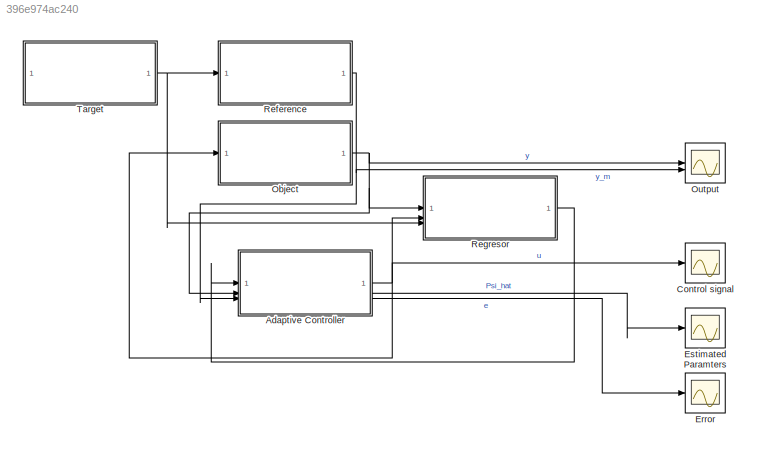
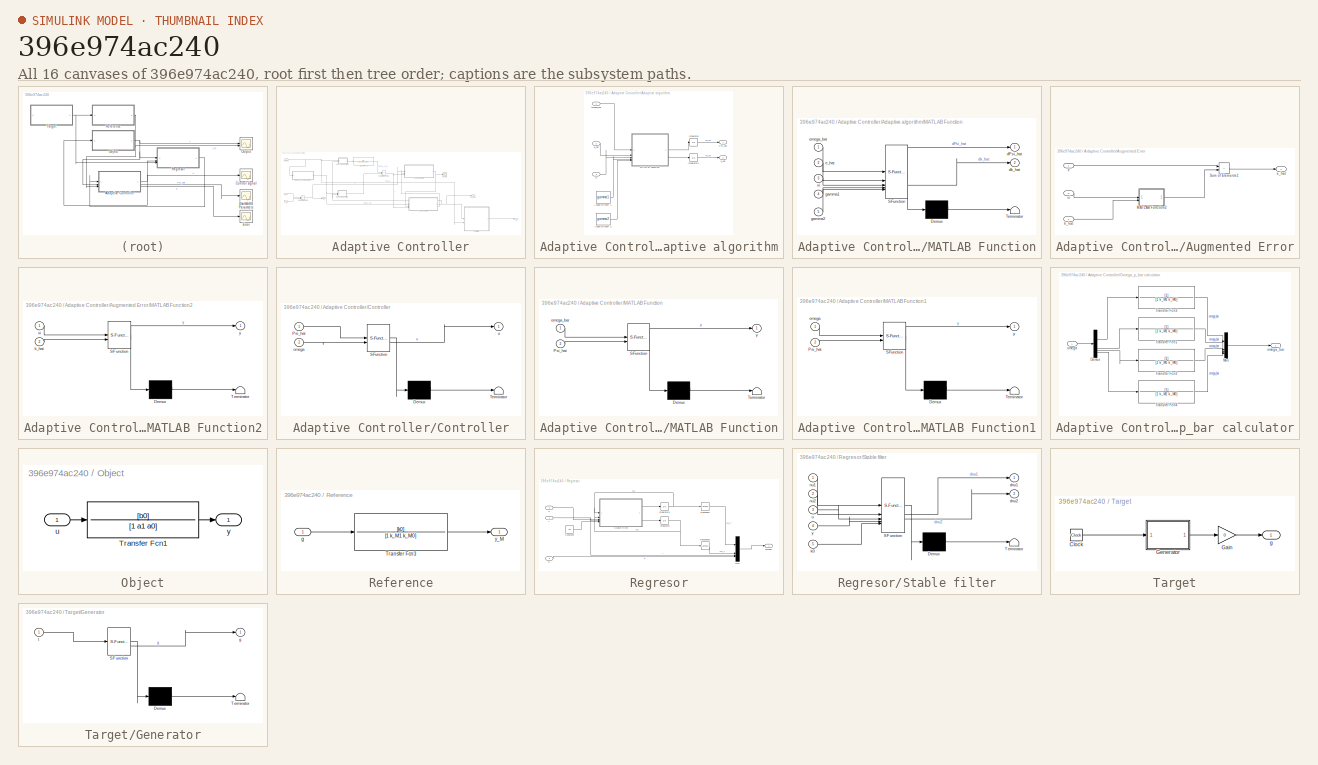
[diagram: thumbnail index - all 16 canvases of the model, root first then tree order]
MODEL slx_396e974ac240
KIND model
CONFIG AbsTol = auto
CONFIG EnableMultiTasking = off
CONFIG FixedStep = 1e-3
CONFIG MaxStep = auto
CONFIG MinStep = auto
CONFIG RelTol = 1e-3
CONFIG SampleTimeConstraint = Unconstrained
CONFIG SolverName = FixedStepAuto
CONFIG StartTime = 0.0
CONFIG StopTime = 300
BLOCK [SubSystem] Adaptive Controller
BLOCK [SubSystem] Adaptive Controller/Adaptive algorithm
BLOCK [Constant] Adaptive Controller/Adaptive algorithm/Adaptive coeff 1
  Value = gamma1
BLOCK [Constant] Adaptive Controller/Adaptive algorithm/Adaptive coeff 2
  Value = gamma2
BLOCK [Integrator] Adaptive Controller/Adaptive algorithm/Integrator
BLOCK [Integrator] Adaptive Controller/Adaptive algorithm/Integrator1
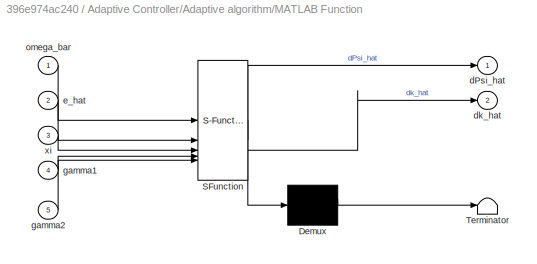
BLOCK [SubSystem] Adaptive Controller/Adaptive algorithm/MATLAB Function
  ErrorFcn = Stateflow.Translate.translate
  PermitHierarchicalResolution = ExplicitOnly
  SFBlockType = MATLAB Function
  TreatAsAtomicUnit = on
BLOCK [Demux] Adaptive Controller/Adaptive algorithm/MATLAB Function/ Demux 
  Outputs = 1
BLOCK [S-Function] Adaptive Controller/Adaptive algorithm/MATLAB Function/ SFunction 
  EnableBusSupport = on
  FunctionName = sf_sfun
  PortCounts = [5 3]
  SFcnIsStateOwnerBlock = off
  SFunctionDeploymentMode = off
  Tag = Stateflow S-Function 3
BLOCK [Terminator] Adaptive Controller/Adaptive algorithm/MATLAB Function/ Terminator 
BLOCK [Outport] Adaptive Controller/Adaptive algorithm/MATLAB Function/dPsi_hat
BLOCK [Outport] Adaptive Controller/Adaptive algorithm/MATLAB Function/dk_hat
  Port = 2
BLOCK [Inport] Adaptive Controller/Adaptive algorithm/MATLAB Function/e_hat
  Port = 2
BLOCK [Inport] Adaptive Controller/Adaptive algorithm/MATLAB Function/gamma1
  Port = 4
BLOCK [Inport] Adaptive Controller/Adaptive algorithm/MATLAB Function/gamma2
  Port = 5
BLOCK [Inport] Adaptive Controller/Adaptive algorithm/MATLAB Function/omega_bar
BLOCK [Inport] Adaptive Controller/Adaptive algorithm/MATLAB Function/xi
  Port = 3
BLOCK [Outport] Adaptive Controller/Adaptive algorithm/Psi_hat
BLOCK [Inport] Adaptive Controller/Adaptive algorithm/e_hat
  Port = 2
BLOCK [Outport] Adaptive Controller/Adaptive algorithm/k_hat
  Port = 2
BLOCK [Inport] Adaptive Controller/Adaptive algorithm/omega_bar
BLOCK [Inport] Adaptive Controller/Adaptive algorithm/xi
  Port = 3
BLOCK [SubSystem] Adaptive Controller/Augmented Error
BLOCK [SubSystem] Adaptive Controller/Augmented Error/MATLAB Function2
  ErrorFcn = Stateflow.Translate.translate
  PermitHierarchicalResolution = ExplicitOnly
  SFBlockType = MATLAB Function
  TreatAsAtomicUnit = on
BLOCK [Demux] Adaptive Controller/Augmented Error/MATLAB Function2/ Demux 
  Outputs = 1
BLOCK [S-Function] Adaptive Controller/Augmented Error/MATLAB Function2/ SFunction 
  EnableBusSupport = on
  FunctionName = sf_sfun
  PortCounts = [2 2]
  SFcnIsStateOwnerBlock = off
  SFunctionDeploymentMode = off
  Tag = Stateflow S-Function 7
BLOCK [Terminator] Adaptive Controller/Augmented Error/MATLAB Function2/ Terminator 
BLOCK [Inport] Adaptive Controller/Augmented Error/MATLAB Function2/k_hat
  Port = 2
BLOCK [Inport] Adaptive Controller/Augmented Error/MATLAB Function2/xi
BLOCK [Outport] Adaptive Controller/Augmented Error/MATLAB Function2/y
BLOCK [Sum] Adaptive Controller/Augmented Error/Sum of Elements1
  IconShape = rectangular
BLOCK [Inport] Adaptive Controller/Augmented Error/e
BLOCK [Outport] Adaptive Controller/Augmented Error/e_hat
BLOCK [Inport] Adaptive Controller/Augmented Error/k_hat
  Port = 2
BLOCK [Inport] Adaptive Controller/Augmented Error/xi
  Port = 3
BLOCK [SubSystem] Adaptive Controller/Controller
  ErrorFcn = Stateflow.Translate.translate
  PermitHierarchicalResolution = ExplicitOnly
  SFBlockType = MATLAB Function
  TreatAsAtomicUnit = on
BLOCK [Demux] Adaptive Controller/Controller/ Demux 
  Outputs = 1
BLOCK [S-Function] Adaptive Controller/Controller/ SFunction 
  EnableBusSupport = on
  FunctionName = sf_sfun
  PortCounts = [2 2]
  SFcnIsStateOwnerBlock = off
  SFunctionDeploymentMode = off
  Tag = Stateflow S-Function 4
BLOCK [Terminator] Adaptive Controller/Controller/ Terminator 
BLOCK [Inport] Adaptive Controller/Controller/Psi_hat
BLOCK [Inport] Adaptive Controller/Controller/omega
  Port = 2
BLOCK [Outport] Adaptive Controller/Controller/u
BLOCK [SubSystem] Adaptive Controller/MATLAB Function
  ErrorFcn = Stateflow.Translate.translate
  PermitHierarchicalResolution = ExplicitOnly
  SFBlockType = MATLAB Function
  TreatAsAtomicUnit = on
BLOCK [Demux] Adaptive Controller/MATLAB Function/ Demux 
  Outputs = 1
BLOCK [S-Function] Adaptive Controller/MATLAB Function/ SFunction 
  EnableBusSupport = on
  FunctionName = sf_sfun
  PortCounts = [2 2]
  SFcnIsStateOwnerBlock = off
  SFunctionDeploymentMode = off
  Tag = Stateflow S-Function 5
BLOCK [Terminator] Adaptive Controller/MATLAB Function/ Terminator 
BLOCK [Inport] Adaptive Controller/MATLAB Function/Psi_hat
  Port = 2
BLOCK [Inport] Adaptive Controller/MATLAB Function/omega_bar
BLOCK [Outport] Adaptive Controller/MATLAB Function/y
BLOCK [SubSystem] Adaptive Controller/MATLAB Function1
  ErrorFcn = Stateflow.Translate.translate
  PermitHierarchicalResolution = ExplicitOnly
  SFBlockType = MATLAB Function
  TreatAsAtomicUnit = on
BLOCK [Demux] Adaptive Controller/MATLAB Function1/ Demux 
  Outputs = 1
BLOCK [S-Function] Adaptive Controller/MATLAB Function1/ SFunction 
  EnableBusSupport = on
  FunctionName = sf_sfun
  PortCounts = [2 2]
  SFcnIsStateOwnerBlock = off
  SFunctionDeploymentMode = off
  Tag = Stateflow S-Function 6
BLOCK [Terminator] Adaptive Controller/MATLAB Function1/ Terminator 
BLOCK [Inport] Adaptive Controller/MATLAB Function1/Psi_hat
  Port = 2
BLOCK [Inport] Adaptive Controller/MATLAB Function1/omega
BLOCK [Outport] Adaptive Controller/MATLAB Function1/y
BLOCK [SubSystem] Adaptive Controller/Omega_p_bar calculator
BLOCK [Demux] Adaptive Controller/Omega_p_bar calculator/Demux
  NameLocation = right
BLOCK [Mux] Adaptive Controller/Omega_p_bar calculator/Mux
  DisplayOption = bar
BLOCK [TransferFcn] Adaptive Controller/Omega_p_bar calculator/Transfer Fcn1
  Denominator = [1 k_M1 k_M0]
BLOCK [TransferFcn] Adaptive Controller/Omega_p_bar calculator/Transfer Fcn2
  Denominator = [1 k_M1 k_M0]
BLOCK [TransferFcn] Adaptive Controller/Omega_p_bar calculator/Transfer Fcn3
  Denominator = [1 k_M1 k_M0]
BLOCK [TransferFcn] Adaptive Controller/Omega_p_bar calculator/Transfer Fcn4
  Denominator = [1 k_M1 k_M0]
BLOCK [Inport] Adaptive Controller/Omega_p_bar calculator/omega
BLOCK [Outport] Adaptive Controller/Omega_p_bar calculator/omega_bar
BLOCK [Outport] Adaptive Controller/Psi_hat
  Port = 2
BLOCK [Scope] Adaptive Controller/Scope
  Floating = off
  NumInputPorts = 1
  ScopeSpecificationString = Simulink.scopes.TimeScopeBlockCfg('CurrentConfiguration', extmgr.ConfigurationSet(extmgr.Configuration('Core','General UI',true),extmgr.Configuration('Core','Source UI',true),extmgr.Configuration('Sources','WiredSimulink',true,'DataLoggingVariableName','ScopeData2'),extmgr.Configuration('Visuals','Time Domain',true,'SerializedDisplays',{struct('MinYLimReal','-0.55975','MaxYLimReal','0.65608','YLab...<+1374ch>
BLOCK [Sum] Adaptive Controller/Sum of Elements
  IconShape = rectangular
  Inputs = -+
BLOCK [Sum] Adaptive Controller/Sum of Elements1
  IconShape = rectangular
  Inputs = +-
BLOCK [TransferFcn] Adaptive Controller/Transfer Fcn3
  Denominator = [1 k_M1 k_M0]
BLOCK [Outport] Adaptive Controller/e
  Port = 3
BLOCK [Inport] Adaptive Controller/omega
BLOCK [Outport] Adaptive Controller/u
BLOCK [Inport] Adaptive Controller/y
  Port = 2
BLOCK [Inport] Adaptive Controller/y_M
  Port = 3
BLOCK [Scope] Control signal
  Floating = off
  NumInputPorts = 1
  ScopeSpecificationString = Simulink.scopes.TimeScopeBlockCfg('CurrentConfiguration', extmgr.ConfigurationSet(extmgr.Configuration('Core','General UI',true,'FigureColor',[1 1 1]),extmgr.Configuration('Core','Source UI',true),extmgr.Configuration('Sources','WiredSimulink',true,'DataLoggingVariableName','ScopeData2'),extmgr.Configuration('Visuals','Time Domain',true,'SerializedDisplays',{struct('MinYLimReal','-14.2354','MaxYLi...<+1822ch>
BLOCK [Scope] Error
  Floating = off
  NumInputPorts = 1
  ScopeSpecificationString = Simulink.scopes.TimeScopeBlockCfg('CurrentConfiguration', extmgr.ConfigurationSet(extmgr.Configuration('Core','General UI',true,'FigureColor',[1 1 1]),extmgr.Configuration('Core','Source UI',true),extmgr.Configuration('Sources','WiredSimulink',true,'DataLoggingVariableName','ScopeData1'),extmgr.Configuration('Visuals','Time Domain',true,'SerializedDisplays',{struct('MinYLimReal','-1.93596','MaxYLi...<+1803ch>
BLOCK [Scope] Estimated Paramters
  Floating = off
  NumInputPorts = 1
  ScopeSpecificationString = Simulink.scopes.TimeScopeBlockCfg('CurrentConfiguration', extmgr.ConfigurationSet(extmgr.Configuration('Core','General UI',true,'FigureColor',[1 1 1]),extmgr.Configuration('Core','Source UI',true),extmgr.Configuration('Sources','WiredSimulink',true,'DataLoggingVariableName','ScopeData1'),extmgr.Configuration('Visuals','Time Domain',true,'SerializedDisplays',{struct('MinYLimReal','-0.25204','MaxYLi...<+2069ch>
BLOCK [SubSystem] Object
BLOCK [TransferFcn] Object/Transfer Fcn1
  Denominator = [1 a1 a0]
  Numerator = [b0]
BLOCK [Inport] Object/u
BLOCK [Outport] Object/y
BLOCK [Scope] Output
  Floating = off
  NumInputPorts = 2
  ScopeSpecificationString = Simulink.scopes.TimeScopeBlockCfg('CurrentConfiguration', extmgr.ConfigurationSet(extmgr.Configuration('Core','General UI',true,'FigureColor',[1 1 1]),extmgr.Configuration('Core','Source UI',true),extmgr.Configuration('Sources','WiredSimulink',true),extmgr.Configuration('Visuals','Time Domain',true,'SerializedDisplays',{struct('MinYLimReal','-13.65366','MaxYLimReal','11.75256','YLabelReal','','Min...<+1866ch>
BLOCK [SubSystem] Reference
BLOCK [TransferFcn] Reference/Transfer Fcn3
  Denominator = [1 k_M1 k_M0]
  Numerator = [k0]
BLOCK [Inport] Reference/g
BLOCK [Outport] Reference/y_M
BLOCK [SubSystem] Regresor
BLOCK [Constant] Regresor/Constant
  Value = k0
BLOCK [Integrator] Regresor/Integrator
BLOCK [Integrator] Regresor/Integrator1
BLOCK [Mux] Regresor/Mux
  DisplayOption = bar
  NameLocation = right
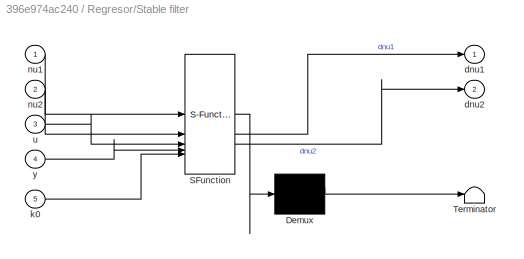
BLOCK [SubSystem] Regresor/Stable filter
  ErrorFcn = Stateflow.Translate.translate
  PermitHierarchicalResolution = ExplicitOnly
  SFBlockType = MATLAB Function
  TreatAsAtomicUnit = on
BLOCK [Demux] Regresor/Stable filter/ Demux 
  Outputs = 1
BLOCK [S-Function] Regresor/Stable filter/ SFunction 
  EnableBusSupport = on
  FunctionName = sf_sfun
  PortCounts = [5 3]
  SFcnIsStateOwnerBlock = off
  SFunctionDeploymentMode = off
  Tag = Stateflow S-Function 2
BLOCK [Terminator] Regresor/Stable filter/ Terminator 
BLOCK [Outport] Regresor/Stable filter/dnu1
BLOCK [Outport] Regresor/Stable filter/dnu2
  Port = 2
BLOCK [Inport] Regresor/Stable filter/k0
  Port = 5
BLOCK [Inport] Regresor/Stable filter/nu1
BLOCK [Inport] Regresor/Stable filter/nu2
  Port = 2
BLOCK [Inport] Regresor/Stable filter/u
  Port = 3
BLOCK [Inport] Regresor/Stable filter/y
  Port = 4
BLOCK [Math] Regresor/Transpose
  Operator = transpose
BLOCK [Math] Regresor/Transpose1
  Operator = transpose
BLOCK [Inport] Regresor/g
  Port = 3
BLOCK [Outport] Regresor/omega
BLOCK [Inport] Regresor/u
  Port = 2
BLOCK [Inport] Regresor/y
BLOCK [SubSystem] Target
BLOCK [Clock] Target/Clock
BLOCK [Gain] Target/Gain
  Commented = through
  Gain = 0
BLOCK [SubSystem] Target/Generator
  ErrorFcn = Stateflow.Translate.translate
  PermitHierarchicalResolution = ExplicitOnly
  SFBlockType = MATLAB Function
  TreatAsAtomicUnit = on
BLOCK [Demux] Target/Generator/ Demux 
  Outputs = 1
BLOCK [S-Function] Target/Generator/ SFunction 
  EnableBusSupport = on
  FunctionName = sf_sfun
  PortCounts = [1 2]
  SFcnIsStateOwnerBlock = off
  SFunctionDeploymentMode = off
  Tag = Stateflow S-Function 1
BLOCK [Terminator] Target/Generator/ Terminator 
BLOCK [Outport] Target/Generator/g
BLOCK [Inport] Target/Generator/t
BLOCK [Outport] Target/g
LINE Adaptive Controller/Adaptive algorithm/Adaptive coeff 1:1 -> Adaptive Controller/Adaptive algorithm/MATLAB Function:4
LINE Adaptive Controller/Adaptive algorithm/Adaptive coeff 2:1 -> Adaptive Controller/Adaptive algorithm/MATLAB Function:5
LINE Adaptive Controller/Adaptive algorithm/Integrator1:1 -> Adaptive Controller/Adaptive algorithm/k_hat:1
LINE Adaptive Controller/Adaptive algorithm/Integrator:1 -> Adaptive Controller/Adaptive algorithm/Psi_hat:1
LINE Adaptive Controller/Adaptive algorithm/MATLAB Function:1 -> Adaptive Controller/Adaptive algorithm/Integrator:1
LINE Adaptive Controller/Adaptive algorithm/MATLAB Function:2 -> Adaptive Controller/Adaptive algorithm/Integrator1:1
LINE Adaptive Controller/Adaptive algorithm/e_hat:1 -> Adaptive Controller/Adaptive algorithm/MATLAB Function:2
LINE Adaptive Controller/Adaptive algorithm/omega_bar:1 -> Adaptive Controller/Adaptive algorithm/MATLAB Function:1
LINE Adaptive Controller/Adaptive algorithm/xi:1 -> Adaptive Controller/Adaptive algorithm/MATLAB Function:3
NET Adaptive Controller/Adaptive algorithm:1 -> Adaptive Controller/Controller:1, Adaptive Controller/MATLAB Function1:2, Adaptive Controller/MATLAB Function:2, Adaptive Controller/Psi_hat:1
LINE Adaptive Controller/Adaptive algorithm:2 -> Adaptive Controller/Augmented Error:2
LINE Adaptive Controller/Augmented Error/MATLAB Function2:1 -> Adaptive Controller/Augmented Error/Sum of Elements1:2
LINE Adaptive Controller/Augmented Error/Sum of Elements1:1 -> Adaptive Controller/Augmented Error/e_hat:1
LINE Adaptive Controller/Augmented Error/e:1 -> Adaptive Controller/Augmented Error/Sum of Elements1:1
LINE Adaptive Controller/Augmented Error/k_hat:1 -> Adaptive Controller/Augmented Error/MATLAB Function2:2
LINE Adaptive Controller/Augmented Error/xi:1 -> Adaptive Controller/Augmented Error/MATLAB Function2:1
NET Adaptive Controller/Augmented Error:1 -> Adaptive Controller/Adaptive algorithm:2, Adaptive Controller/Scope:1
LINE Adaptive Controller/Controller:1 -> Adaptive Controller/u:1
LINE Adaptive Controller/MATLAB Function1:1 -> Adaptive Controller/Transfer Fcn3:1
LINE Adaptive Controller/MATLAB Function:1 -> Adaptive Controller/Sum of Elements1:2
LINE Adaptive Controller/Omega_p_bar calculator/Demux:1 -> Adaptive Controller/Omega_p_bar calculator/Transfer Fcn3:1
LINE Adaptive Controller/Omega_p_bar calculator/Demux:2 -> Adaptive Controller/Omega_p_bar calculator/Transfer Fcn1:1
LINE Adaptive Controller/Omega_p_bar calculator/Demux:3 -> Adaptive Controller/Omega_p_bar calculator/Transfer Fcn2:1
LINE Adaptive Controller/Omega_p_bar calculator/Demux:4 -> Adaptive Controller/Omega_p_bar calculator/Transfer Fcn4:1
LINE Adaptive Controller/Omega_p_bar calculator/Mux:1 -> Adaptive Controller/Omega_p_bar calculator/omega_bar:1
LINE Adaptive Controller/Omega_p_bar calculator/Transfer Fcn1:1 -> Adaptive Controller/Omega_p_bar calculator/Mux:2
LINE Adaptive Controller/Omega_p_bar calculator/Transfer Fcn2:1 -> Adaptive Controller/Omega_p_bar calculator/Mux:3
LINE Adaptive Controller/Omega_p_bar calculator/Transfer Fcn3:1 -> Adaptive Controller/Omega_p_bar calculator/Mux:1
LINE Adaptive Controller/Omega_p_bar calculator/Transfer Fcn4:1 -> Adaptive Controller/Omega_p_bar calculator/Mux:4
LINE Adaptive Controller/Omega_p_bar calculator/omega:1 -> Adaptive Controller/Omega_p_bar calculator/Demux:1
NET Adaptive Controller/Omega_p_bar calculator:1 -> Adaptive Controller/Adaptive algorithm:1, Adaptive Controller/MATLAB Function:1
NET Adaptive Controller/Sum of Elements1:1 -> Adaptive Controller/Adaptive algorithm:3, Adaptive Controller/Augmented Error:3
NET Adaptive Controller/Sum of Elements:1 -> Adaptive Controller/Augmented Error:1, Adaptive Controller/e:1
LINE Adaptive Controller/Transfer Fcn3:1 -> Adaptive Controller/Sum of Elements1:1
NET Adaptive Controller/omega:1 -> Adaptive Controller/Controller:2, Adaptive Controller/MATLAB Function1:1, Adaptive Controller/Omega_p_bar calculator:1
LINE Adaptive Controller/y:1 -> Adaptive Controller/Sum of Elements:1
LINE Adaptive Controller/y_M:1 -> Adaptive Controller/Sum of Elements:2
NET Adaptive Controller:1 -> Control signal:1, Object:1, Regresor:2
LINE Adaptive Controller:2 -> Estimated Paramters:1
LINE Adaptive Controller:3 -> Error:1
LINE Object/Transfer Fcn1:1 -> Object/y:1
LINE Object/u:1 -> Object/Transfer Fcn1:1
NET Object:1 -> Adaptive Controller:2, Output:1, Regresor:1
LINE Reference/Transfer Fcn3:1 -> Reference/y_M:1
LINE Reference/g:1 -> Reference/Transfer Fcn3:1
NET Reference:1 -> Adaptive Controller:3, Output:2
LINE Regresor/Constant:1 -> Regresor/Stable filter:5
NET Regresor/Integrator1:1 -> Regresor/Stable filter:1, Regresor/Transpose:1
NET Regresor/Integrator:1 -> Regresor/Stable filter:2, Regresor/Transpose1:1
LINE Regresor/Mux:1 -> Regresor/omega:1
LINE Regresor/Stable filter:1 -> Regresor/Integrator1:1
LINE Regresor/Stable filter:2 -> Regresor/Integrator:1
LINE Regresor/Transpose1:1 -> Regresor/Mux:2
LINE Regresor/Transpose:1 -> Regresor/Mux:1
LINE Regresor/g:1 -> Regresor/Mux:4
LINE Regresor/u:1 -> Regresor/Stable filter:3
NET Regresor/y:1 -> Regresor/Mux:3, Regresor/Stable filter:4
LINE Regresor:1 -> Adaptive Controller:1
LINE Target/Clock:1 -> Target/Generator:1
LINE Target/Gain:1 -> Target/g:1
LINE Target/Generator:1 -> Target/Gain:1
NET Target:1 -> Reference:1, Regresor:3
note: NET lines group one-source signal fan-out (src -> all destinations, sorted); 1:1 wires keep LINE
CHART Target/Generator states=1 transitions=1
  STATE_LABEL 'eML_blk_kernel()'
  STATE_LABEL 'SCRIPT:\nfunction g = fcn(t)\n\ng = 3*sign(sin(0.5*t));\n'
CHART Regresor/Stable filter states=1 transitions=1
  STATE_LABEL 'eML_blk_kernel()'
  STATE_LABEL 'SCRIPT:\nfunction [dnu1, dnu2] = fcn(nu1, nu2, u, y, k0)\n%\n% Stable filters in Lemma (R. V. Monopoli, 1974, direct control parameterization lemma )\n%\n\n%\nLambda = -k0;\ndnu1 = Lambda*nu1 + u; \ndnu2 = Lambda*nu2 + y;\n'
CHART Adaptive Controller/Adaptive algorithm/MATLAB Function states=1 transitions=1
  STATE_LABEL 'eML_blk_kernel()'
  STATE_LABEL "SCRIPT:\nfunction [dPsi_hat, dk_hat] = fcn(omega_bar, e_hat, xi, gamma1, gamma2)\n\ndPsi_hat = gamma1 / (1 + omega_bar'*omega_bar) * (omega_bar  .* e_hat);\ndk_hat = -gamma2 / (1 + omega_bar'*omega_bar) * (xi .* e_hat);\n"
CHART Adaptive Controller/Controller states=1 transitions=1
  STATE_LABEL 'eML_blk_kernel()'
  STATE_LABEL "SCRIPT:\nfunction u = fcn(Psi_hat, omega)\n\nu = Psi_hat'*omega;\n"
CHART Adaptive Controller/MATLAB Function states=1 transitions=1
  STATE_LABEL 'eML_blk_kernel()'
  STATE_LABEL "SCRIPT:\nfunction y = fcn(omega_bar, Psi_hat)\n\ny = Psi_hat'*omega_bar;\n"
CHART Adaptive Controller/MATLAB Function1 states=1 transitions=1
  STATE_LABEL 'eML_blk_kernel()'
  STATE_LABEL "SCRIPT:\nfunction y = fcn(omega, Psi_hat)\n\ny = Psi_hat'*omega;\n"
CHART Adaptive Controller/Augmented Error/MATLAB Function2 states=1 transitions=1
  STATE_LABEL 'eML_blk_kernel()'
  STATE_LABEL 'SCRIPT:\nfunction y = fcn(xi, k_hat)\n\ny = k_hat.*xi;\n'
CHART  states=0 transitions=0
CHART  states=0 transitions=0
CHART  states=0 transitions=0
CHART  states=0 transitions=0
CHART  states=0 transitions=0
CHART  states=0 transitions=0
CHART  states=0 transitions=0
